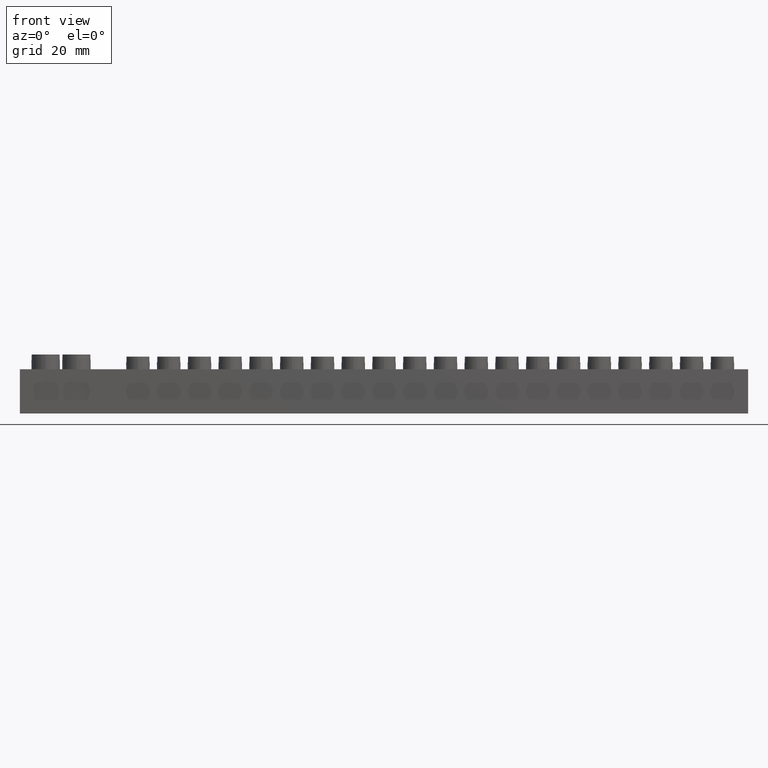
[diagram: clean part render]
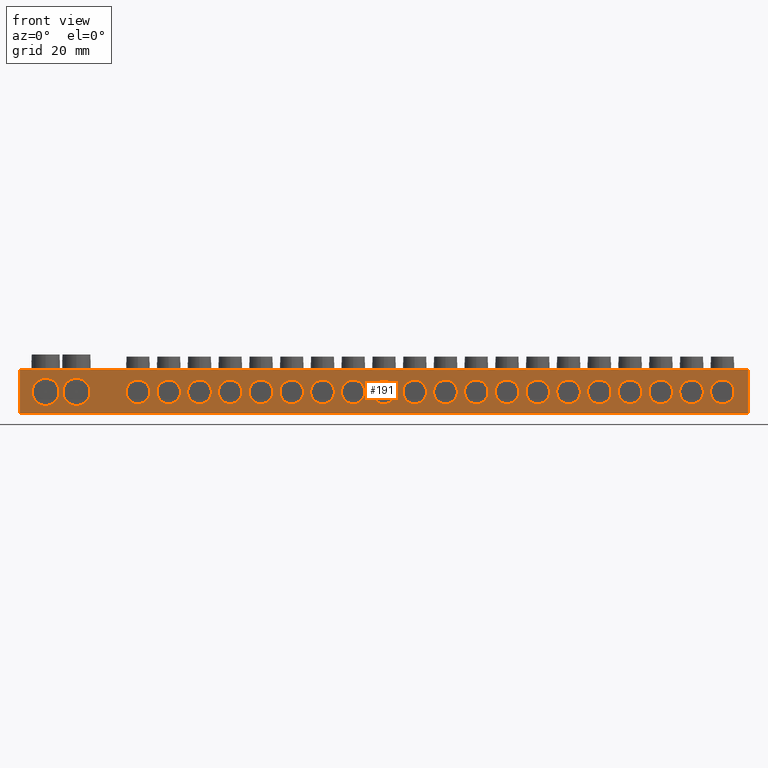
[diagram: same view with one face highlighted and labeled with its STEP entity id]
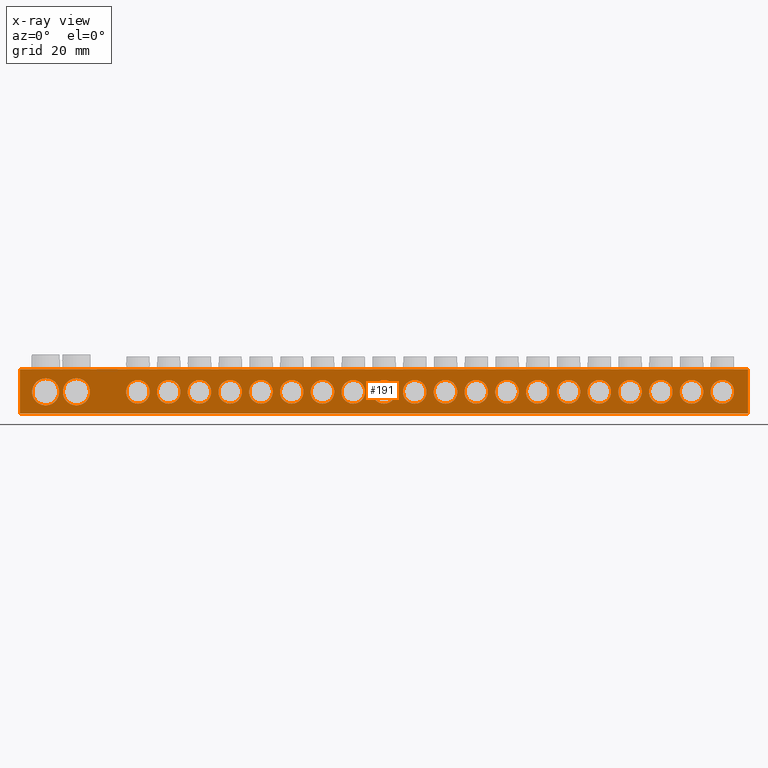
[diagram: x-ray of the same camera — body ghosted, the highlighted face saturated]
A machine part, front view. The second image highlights one B-rep face of the part: STEP entity #191.
The next image is the same camera in x-ray: the body ghosted, the highlighted face saturated — about 0% of this face is hidden behind the body in this view.
In plain terms, the highlighted planar face has unit normal (0, 1, 0).
Its self-contained STEP definition (entity closure, byte-faithful):
#80 = EDGE_CURVE ( 'NONE', #8462, #8503, #7525, .T. ) ;
#85 = EDGE_CURVE ( 'NONE', #12274, #12290, #11402, .T. ) ;
#92 = EDGE_CURVE ( 'NONE', #12310, #12314, #11470, .T. ) ;
#94 = EDGE_CURVE ( 'NONE', #8414, #8417, #7569, .T. ) ;
#96 = EDGE_CURVE ( 'NONE', #8403, #8395, #7550, .T. ) ;
#105 = EDGE_CURVE ( 'NONE', #8399, #8437, #7582, .T. ) ;
#112 = EDGE_CURVE ( 'NONE', #8449, #8440, #7586, .T. ) ;
#120 = EDGE_CURVE ( 'NONE', #12314, #12274, #11468, .T. ) ;
#123 = EDGE_CURVE ( 'NONE', #8466, #8392, #7571, .T. ) ;
#126 = EDGE_CURVE ( 'NONE', #8450, #8390, #7572, .T. ) ;
#130 = EDGE_CURVE ( 'NONE', #8429, #8487, #7554, .T. ) ;
#131 = EDGE_CURVE ( 'NONE', #8393, #8388, #7578, .T. ) ;
#132 = EDGE_CURVE ( 'NONE', #8432, #8401, #7579, .T. ) ;
#136 = EDGE_CURVE ( 'NONE', #8448, #8435, #7542, .T. ) ;
#137 = EDGE_CURVE ( 'NONE', #12290, #12310, #11507, .T. ) ;
#142 = EDGE_CURVE ( 'NONE', #8444, #8391, #7543, .T. ) ;
#191 = ADVANCED_FACE ( 'NONE', ( #11804, #11794, #11792, #11799, #11816, #11803, #11805, #11814, #11810, #11811, #11821, #11818, #11812, #11815, #11817, #11813, #11819, #11820, #11793, #11823, #11824, #11806, #11822 ), #11795, .F. ) ;
#306 = DIRECTION ( 'NONE',  ( 0.0000000000000000000, 0.0000000000000000000, -1.000000000000000000 ) ) ;
#309 = CARTESIAN_POINT ( 'NONE',  ( 36.55000000000012500, 0.0000000000000000000, 4.399999999999753400 ) ) ;
#312 = CARTESIAN_POINT ( 'NONE',  ( 111.5500000000000300, 0.0000000000000000000, 4.399999999999926600 ) ) ;
#314 = CARTESIAN_POINT ( 'NONE',  ( 42.80000000000011800, 0.0000000000000000000, 4.399999999999766800 ) ) ;
#315 = DIRECTION ( 'NONE',  ( -0.0000000000000000000, -1.000000000000000000, -0.0000000000000000000 ) ) ;
#317 = DIRECTION ( 'NONE',  ( 0.0000000000000000000, 0.0000000000000000000, -1.000000000000000000 ) ) ;
#320 = DIRECTION ( 'NONE',  ( 0.0000000000000000000, 0.0000000000000000000, -1.000000000000000000 ) ) ;
#323 = DIRECTION ( 'NONE',  ( -0.0000000000000000000, -1.000000000000000000, -0.0000000000000000000 ) ) ;
#326 = DIRECTION ( 'NONE',  ( 0.0000000000000000000, 0.0000000000000000000, -1.000000000000000000 ) ) ;
#333 = DIRECTION ( 'NONE',  ( -0.0000000000000000000, -1.000000000000000000, -0.0000000000000000000 ) ) ;
#342 = CARTESIAN_POINT ( 'NONE',  ( 11.55000000000000100, 0.0000000000000000000, 4.399999999999999500 ) ) ;
#345 = DIRECTION ( 'NONE',  ( 0.0000000000000000000, 0.0000000000000000000, -1.000000000000000000 ) ) ;
#349 = CARTESIAN_POINT ( 'NONE',  ( 99.05000000000004000, 0.0000000000000000000, 4.399999999999898200 ) ) ;
#350 = CARTESIAN_POINT ( 'NONE',  ( 117.8000000000000100, 0.0000000000000000000, 4.399999999999940800 ) ) ;
#352 = DIRECTION ( 'NONE',  ( 0.0000000000000000000, 0.0000000000000000000, -1.000000000000000000 ) ) ;
#355 = DIRECTION ( 'NONE',  ( -0.0000000000000000000, -1.000000000000000000, -0.0000000000000000000 ) ) ;
#358 = DIRECTION ( 'NONE',  ( 0.0000000000000000000, 0.0000000000000000000, -1.000000000000000000 ) ) ;
#364 = CARTESIAN_POINT ( 'NONE',  ( 49.05000000000011100, 0.0000000000000000000, 4.399999999999781900 ) ) ;
#365 = DIRECTION ( 'NONE',  ( -0.0000000000000000000, -1.000000000000000000, -0.0000000000000000000 ) ) ;
#366 = DIRECTION ( 'NONE',  ( -0.0000000000000000000, -1.000000000000000000, -0.0000000000000000000 ) ) ;
#371 = DIRECTION ( 'NONE',  ( -0.0000000000000000000, -1.000000000000000000, -0.0000000000000000000 ) ) ;
#375 = DIRECTION ( 'NONE',  ( 0.0000000000000000000, 0.0000000000000000000, -1.000000000000000000 ) ) ;
#428 = DIRECTION ( 'NONE',  ( -0.0000000000000000000, -1.000000000000000000, -0.0000000000000000000 ) ) ;
#430 = DIRECTION ( 'NONE',  ( 0.0000000000000000000, 0.0000000000000000000, -1.000000000000000000 ) ) ;
#448 = CARTESIAN_POINT ( 'NONE',  ( 124.0500000000000100, 0.0000000000000000000, 4.399999999999955900 ) ) ;
#466 = DIRECTION ( 'NONE',  ( -0.0000000000000000000, -1.000000000000000000, -0.0000000000000000000 ) ) ;
#467 = CARTESIAN_POINT ( 'NONE',  ( 55.30000000000009700, 0.0000000000000000000, 4.399999999999795200 ) ) ;
#468 = DIRECTION ( 'NONE',  ( -0.0000000000000000000, -1.000000000000000000, -0.0000000000000000000 ) ) ;
#470 = DIRECTION ( 'NONE',  ( 0.0000000000000000000, 0.0000000000000000000, -1.000000000000000000 ) ) ;
#476 = CARTESIAN_POINT ( 'NONE',  ( 30.30000000000013200, 0.0000000000000000000, 4.399999999999737500 ) ) ;
#478 = DIRECTION ( 'NONE',  ( 0.0000000000000000000, 0.0000000000000000000, -1.000000000000000000 ) ) ;
#482 = DIRECTION ( 'NONE',  ( -0.0000000000000000000, -1.000000000000000000, -0.0000000000000000000 ) ) ;
#489 = CARTESIAN_POINT ( 'NONE',  ( 24.05000000000013900, 0.0000000000000000000, 4.399999999999723200 ) ) ;
#499 = DIRECTION ( 'NONE',  ( 0.0000000000000000000, 0.0000000000000000000, -1.000000000000000000 ) ) ;
#510 = CARTESIAN_POINT ( 'NONE',  ( 86.55000000000005400, 0.0000000000000000000, 4.399999999999868000 ) ) ;
#542 = DIRECTION ( 'NONE',  ( -0.0000000000000000000, -1.000000000000000000, -0.0000000000000000000 ) ) ;
#544 = DIRECTION ( 'NONE',  ( 0.0000000000000000000, 0.0000000000000000000, -1.000000000000000000 ) ) ;
#553 = DIRECTION ( 'NONE',  ( 0.0000000000000000000, 0.0000000000000000000, -1.000000000000000000 ) ) ;
#569 = CARTESIAN_POINT ( 'NONE',  ( 61.55000000000009000, 0.0000000000000000000, 4.399999999999810300 ) ) ;
#576 = DIRECTION ( 'NONE',  ( -0.0000000000000000000, -1.000000000000000000, -0.0000000000000000000 ) ) ;
#939 = DIRECTION ( 'NONE',  ( -0.0000000000000000000, -1.000000000000000000, -0.0000000000000000000 ) ) ;
#941 = DIRECTION ( 'NONE',  ( -0.0000000000000000000, -1.000000000000000000, -0.0000000000000000000 ) ) ;
#942 = DIRECTION ( 'NONE',  ( 0.0000000000000000000, 0.0000000000000000000, -1.000000000000000000 ) ) ;
#967 = CARTESIAN_POINT ( 'NONE',  ( 55.30000000000009700, 0.0000000000000000000, 4.399999999999795200 ) ) ;
#977 = CARTESIAN_POINT ( 'NONE',  ( 42.80000000000011800, 0.0000000000000000000, 4.399999999999766800 ) ) ;
#978 = DIRECTION ( 'NONE',  ( 0.0000000000000000000, 0.0000000000000000000, -1.000000000000000000 ) ) ;
#993 = CARTESIAN_POINT ( 'NONE',  ( 30.30000000000013200, 0.0000000000000000000, 4.399999999999737500 ) ) ;
#1002 = CARTESIAN_POINT ( 'NONE',  ( 80.30000000000006800, 0.0000000000000000000, 4.399999999999853800 ) ) ;
#1016 = DIRECTION ( 'NONE',  ( -0.0000000000000000000, -1.000000000000000000, -0.0000000000000000000 ) ) ;
#1017 = DIRECTION ( 'NONE',  ( 0.0000000000000000000, 0.0000000000000000000, -1.000000000000000000 ) ) ;
#1018 = CARTESIAN_POINT ( 'NONE',  ( 61.55000000000009000, 0.0000000000000000000, 4.399999999999810300 ) ) ;
#1023 = DIRECTION ( 'NONE',  ( 0.0000000000000000000, 0.0000000000000000000, -1.000000000000000000 ) ) ;
#1026 = DIRECTION ( 'NONE',  ( -0.0000000000000000000, -1.000000000000000000, -0.0000000000000000000 ) ) ;
#1028 = DIRECTION ( 'NONE',  ( 0.0000000000000000000, 0.0000000000000000000, -1.000000000000000000 ) ) ;
#1036 = CARTESIAN_POINT ( 'NONE',  ( 74.05000000000006800, 0.0000000000000000000, 4.399999999999839600 ) ) ;
#1039 = CARTESIAN_POINT ( 'NONE',  ( 67.80000000000008200, 0.0000000000000000000, 4.399999999999825400 ) ) ;
#1040 = DIRECTION ( 'NONE',  ( -0.0000000000000000000, -1.000000000000000000, -0.0000000000000000000 ) ) ;
#1042 = DIRECTION ( 'NONE',  ( -0.0000000000000000000, -1.000000000000000000, -0.0000000000000000000 ) ) ;
#1045 = DIRECTION ( 'NONE',  ( 0.0000000000000000000, 0.0000000000000000000, -1.000000000000000000 ) ) ;
#1053 = DIRECTION ( 'NONE',  ( -0.0000000000000000000, -1.000000000000000000, -0.0000000000000000000 ) ) ;
#1056 = DIRECTION ( 'NONE',  ( -0.0000000000000000000, -1.000000000000000000, -0.0000000000000000000 ) ) ;
#1058 = CARTESIAN_POINT ( 'NONE',  ( 24.05000000000013900, 0.0000000000000000000, 4.399999999999723200 ) ) ;
#1063 = DIRECTION ( 'NONE',  ( 0.0000000000000000000, 0.0000000000000000000, -1.000000000000000000 ) ) ;
#1066 = CARTESIAN_POINT ( 'NONE',  ( 49.05000000000011100, 0.0000000000000000000, 4.399999999999781900 ) ) ;
#1070 = DIRECTION ( 'NONE',  ( 0.0000000000000000000, 0.0000000000000000000, -1.000000000000000000 ) ) ;
#1073 = DIRECTION ( 'NONE',  ( 0.0000000000000000000, 0.0000000000000000000, -1.000000000000000000 ) ) ;
#1085 = CARTESIAN_POINT ( 'NONE',  ( 36.55000000000012500, 0.0000000000000000000, 4.399999999999753400 ) ) ;
#1093 = DIRECTION ( 'NONE',  ( -0.0000000000000000000, -1.000000000000000000, -0.0000000000000000000 ) ) ;
#1116 = DIRECTION ( 'NONE',  ( 0.0000000000000000000, 0.0000000000000000000, -1.000000000000000000 ) ) ;
#1119 = CARTESIAN_POINT ( 'NONE',  ( 105.3000000000000300, 0.0000000000000000000, 4.399999999999911500 ) ) ;
#1120 = CARTESIAN_POINT ( 'NONE',  ( 67.80000000000008200, 0.0000000000000000000, 4.399999999999825400 ) ) ;
#1121 = DIRECTION ( 'NONE',  ( -0.0000000000000000000, -1.000000000000000000, -0.0000000000000000000 ) ) ;
#1122 = DIRECTION ( 'NONE',  ( 0.0000000000000000000, 0.0000000000000000000, -1.000000000000000000 ) ) ;
#1123 = DIRECTION ( 'NONE',  ( 0.0000000000000000000, 0.0000000000000000000, -1.000000000000000000 ) ) ;
#1129 = DIRECTION ( 'NONE',  ( -0.0000000000000000000, -1.000000000000000000, -0.0000000000000000000 ) ) ;
#1131 = CARTESIAN_POINT ( 'NONE',  ( 80.30000000000006800, 0.0000000000000000000, 4.399999999999853800 ) ) ;
#1133 = DIRECTION ( 'NONE',  ( -0.0000000000000000000, -1.000000000000000000, -0.0000000000000000000 ) ) ;
#1139 = CARTESIAN_POINT ( 'NONE',  ( 142.7999999999999800, 0.0000000000000000000, 4.399999999999999500 ) ) ;
#1141 = CARTESIAN_POINT ( 'NONE',  ( 136.5500000000000100, 0.0000000000000000000, 4.399999999999984400 ) ) ;
#1142 = DIRECTION ( 'NONE',  ( -0.0000000000000000000, -1.000000000000000000, -0.0000000000000000000 ) ) ;
#1143 = DIRECTION ( 'NONE',  ( -0.0000000000000000000, -1.000000000000000000, -0.0000000000000000000 ) ) ;
#1144 = DIRECTION ( 'NONE',  ( 0.0000000000000000000, 0.0000000000000000000, -1.000000000000000000 ) ) ;
#1146 = DIRECTION ( 'NONE',  ( 0.0000000000000000000, 0.0000000000000000000, -1.000000000000000000 ) ) ;
#1162 = DIRECTION ( 'NONE',  ( 0.0000000000000000000, 0.0000000000000000000, -1.000000000000000000 ) ) ;
#1166 = CARTESIAN_POINT ( 'NONE',  ( 74.05000000000006800, 0.0000000000000000000, 4.399999999999839600 ) ) ;
#1167 = DIRECTION ( 'NONE',  ( -0.0000000000000000000, -1.000000000000000000, -0.0000000000000000000 ) ) ;
#1171 = DIRECTION ( 'NONE',  ( -0.0000000000000000000, -1.000000000000000000, -0.0000000000000000000 ) ) ;
#1579 = CARTESIAN_POINT ( 'NONE',  ( 148.0500000000000100, 0.0000000000000000000, 0.0000000000000000000 ) ) ;
#1637 = CARTESIAN_POINT ( 'NONE',  ( 148.0500000000000100, 0.0000000000000000000, 9.000000000000001800 ) ) ;
#1648 = CARTESIAN_POINT ( 'NONE',  ( 0.05000000000000000300, 0.0000000000000000000, 9.000000000000001800 ) ) ;
#1651 = CARTESIAN_POINT ( 'NONE',  ( 0.05000000000000000300, 0.0000000000000000000, 0.0000000000000000000 ) ) ;
#2678 = EDGE_LOOP ( 'NONE', ( #7935, #7885 ) ) ;
#2679 = EDGE_LOOP ( 'NONE', ( #7827, #7848 ) ) ;
#2681 = EDGE_LOOP ( 'NONE', ( #7852, #7832 ) ) ;
#2682 = EDGE_LOOP ( 'NONE', ( #7891, #7939 ) ) ;
#2683 = EDGE_LOOP ( 'NONE', ( #7927, #7932 ) ) ;
#2686 = EDGE_LOOP ( 'NONE', ( #7938, #7835 ) ) ;
#2691 = EDGE_LOOP ( 'NONE', ( #7940, #7892 ) ) ;
#2694 = EDGE_LOOP ( 'NONE', ( #7921, #7900 ) ) ;
#2698 = EDGE_LOOP ( 'NONE', ( #7903, #7880 ) ) ;
#2702 = EDGE_LOOP ( 'NONE', ( #7905, #7920 ) ) ;
#2704 = EDGE_LOOP ( 'NONE', ( #7889, #7934 ) ) ;
#2708 = EDGE_LOOP ( 'NONE', ( #7830, #7841 ) ) ;
#2709 = EDGE_LOOP ( 'NONE', ( #7857, #7926 ) ) ;
#2715 = EDGE_LOOP ( 'NONE', ( #7845, #7923 ) ) ;
#2726 = EDGE_LOOP ( 'NONE', ( #7824, #7842 ) ) ;
#2729 = EDGE_LOOP ( 'NONE', ( #7936, #7844, #7843, #7899 ) ) ;
#2732 = EDGE_LOOP ( 'NONE', ( #7879, #7893 ) ) ;
#2739 = EDGE_LOOP ( 'NONE', ( #7911, #7930 ) ) ;
#2752 = EDGE_LOOP ( 'NONE', ( #7897, #7928 ) ) ;
#2773 = EDGE_LOOP ( 'NONE', ( #7853, #7834 ) ) ;
#2789 = EDGE_LOOP ( 'NONE', ( #7847, #7878 ) ) ;
#2793 = EDGE_LOOP ( 'NONE', ( #7941, #7917 ) ) ;
#2794 = EDGE_LOOP ( 'NONE', ( #7933, #7898 ) ) ;
#2987 = DIRECTION ( 'NONE',  ( -0.0000000000000000000, -1.000000000000000000, -0.0000000000000000000 ) ) ;
#2988 = CARTESIAN_POINT ( 'NONE',  ( 130.3000000000000400, 0.0000000000000000000, 4.399999999999970200 ) ) ;
#2994 = DIRECTION ( 'NONE',  ( -0.0000000000000000000, -1.000000000000000000, -0.0000000000000000000 ) ) ;
#2996 = CARTESIAN_POINT ( 'NONE',  ( 5.299999999999999800, 0.0000000000000000000, 4.399999999999999500 ) ) ;
#2997 = DIRECTION ( 'NONE',  ( 0.0000000000000000000, 0.0000000000000000000, -1.000000000000000000 ) ) ;
#5025 = DIRECTION ( 'NONE',  ( 0.0000000000000000000, 0.0000000000000000000, -1.000000000000000000 ) ) ;
#5107 = AXIS2_PLACEMENT_3D ( 'NONE', #1036, #1040, #1045 ) ;
#5109 = CIRCLE ( 'NONE', #5111, 2.400000000000000800 ) ;
#5111 = AXIS2_PLACEMENT_3D ( 'NONE', #1085, #1093, #1073 ) ;
#5114 = CIRCLE ( 'NONE', #5107, 2.400000000000000800 ) ;
#5122 = CIRCLE ( 'NONE', #5148, 2.400000000000000800 ) ;
#5125 = AXIS2_PLACEMENT_3D ( 'NONE', #1058, #1056, #1063 ) ;
#5127 = CIRCLE ( 'NONE', #5156, 2.400000000000000800 ) ;
#5148 = AXIS2_PLACEMENT_3D ( 'NONE', #1039, #1053, #1028 ) ;
#5152 = CIRCLE ( 'NONE', #5125, 2.400000000000001200 ) ;
#5156 = AXIS2_PLACEMENT_3D ( 'NONE', #1066, #1042, #1070 ) ;
#5193 = AXIS2_PLACEMENT_3D ( 'NONE', #1002, #2987, #11854 ) ;
#5198 = CIRCLE ( 'NONE', #5193, 2.400000000000000800 ) ;
#5567 = CIRCLE ( 'NONE', #5569, 2.400000000000000800 ) ;
#5568 = AXIS2_PLACEMENT_3D ( 'NONE', #993, #1016, #1017 ) ;
#5569 = AXIS2_PLACEMENT_3D ( 'NONE', #1018, #1026, #1023 ) ;
#6037 = CIRCLE ( 'NONE', #6091, 2.400000000000000800 ) ;
#6091 = AXIS2_PLACEMENT_3D ( 'NONE', #967, #939, #978 ) ;
#6111 = AXIS2_PLACEMENT_3D ( 'NONE', #2996, #2994, #2997 ) ;
#6139 = CIRCLE ( 'NONE', #6111, 2.749999999999997300 ) ;
#6166 = AXIS2_PLACEMENT_3D ( 'NONE', #309, #315, #326 ) ;
#6167 = AXIS2_PLACEMENT_3D ( 'NONE', #2988, #1143, #1144 ) ;
#6169 = CIRCLE ( 'NONE', #6204, 2.400000000000000800 ) ;
#6170 = AXIS2_PLACEMENT_3D ( 'NONE', #1166, #1167, #306 ) ;
#6171 = CIRCLE ( 'NONE', #6200, 2.400000000000002600 ) ;
#6175 = CIRCLE ( 'NONE', #6214, 2.400000000000000800 ) ;
#6180 = CIRCLE ( 'NONE', #6170, 2.400000000000000800 ) ;
#6186 = CIRCLE ( 'NONE', #6223, 2.400000000000000800 ) ;
#6189 = CIRCLE ( 'NONE', #6167, 2.400000000000002600 ) ;
#6191 = AXIS2_PLACEMENT_3D ( 'NONE', #1141, #1129, #1116 ) ;
#6192 = AXIS2_PLACEMENT_3D ( 'NONE', #1120, #1133, #1123 ) ;
#6195 = CIRCLE ( 'NONE', #6191, 2.400000000000002600 ) ;
#6197 = CIRCLE ( 'NONE', #6192, 2.400000000000000800 ) ;
#6200 = AXIS2_PLACEMENT_3D ( 'NONE', #1139, #1171, #1162 ) ;
#6201 = CIRCLE ( 'NONE', #6206, 2.400000000000000800 ) ;
#6204 = AXIS2_PLACEMENT_3D ( 'NONE', #1119, #1142, #1146 ) ;
#6206 = AXIS2_PLACEMENT_3D ( 'NONE', #314, #323, #320 ) ;
#6209 = CIRCLE ( 'NONE', #6166, 2.400000000000000800 ) ;
#6214 = AXIS2_PLACEMENT_3D ( 'NONE', #1131, #1121, #1122 ) ;
#6223 = AXIS2_PLACEMENT_3D ( 'NONE', #7669, #7000, #5025 ) ;
#6224 = CIRCLE ( 'NONE', #6232, 2.400000000000000800 ) ;
#6225 = CIRCLE ( 'NONE', #6264, 2.400000000000000800 ) ;
#6226 = CIRCLE ( 'NONE', #6254, 2.749999999999998200 ) ;
#6228 = AXIS2_PLACEMENT_3D ( 'NONE', #349, #355, #358 ) ;
#6232 = AXIS2_PLACEMENT_3D ( 'NONE', #364, #366, #375 ) ;
#6254 = AXIS2_PLACEMENT_3D ( 'NONE', #342, #365, #352 ) ;
#6257 = AXIS2_PLACEMENT_3D ( 'NONE', #350, #371, #345 ) ;
#6264 = AXIS2_PLACEMENT_3D ( 'NONE', #312, #333, #317 ) ;
#6269 = CIRCLE ( 'NONE', #6257, 2.400000000000000800 ) ;
#6277 = CIRCLE ( 'NONE', #6228, 2.400000000000000800 ) ;
#6285 = CIRCLE ( 'NONE', #6289, 2.399999999999987500 ) ;
#6289 = AXIS2_PLACEMENT_3D ( 'NONE', #448, #428, #430 ) ;
#6304 = CIRCLE ( 'NONE', #5568, 2.400000000000000800 ) ;
#6308 = AXIS2_PLACEMENT_3D ( 'NONE', #476, #466, #470 ) ;
#6309 = CIRCLE ( 'NONE', #6328, 2.400000000000000800 ) ;
#6310 = AXIS2_PLACEMENT_3D ( 'NONE', #510, #542, #544 ) ;
#6316 = CIRCLE ( 'NONE', #6310, 2.400000000000000800 ) ;
#6318 = CIRCLE ( 'NONE', #6384, 2.400000000000000800 ) ;
#6324 = CIRCLE ( 'NONE', #6308, 2.400000000000000800 ) ;
#6326 = AXIS2_PLACEMENT_3D ( 'NONE', #489, #468, #478 ) ;
#6328 = AXIS2_PLACEMENT_3D ( 'NONE', #467, #482, #499 ) ;
#6333 = CIRCLE ( 'NONE', #6326, 2.400000000000001200 ) ;
#6366 = CIRCLE ( 'NONE', #6534, 2.400000000000000800 ) ;
#6384 = AXIS2_PLACEMENT_3D ( 'NONE', #569, #576, #553 ) ;
#6534 = AXIS2_PLACEMENT_3D ( 'NONE', #977, #941, #942 ) ;
#7000 = DIRECTION ( 'NONE',  ( -0.0000000000000000000, -1.000000000000000000, -0.0000000000000000000 ) ) ;
#7180 = AXIS2_PLACEMENT_3D ( 'NONE', #11800, #11796, #11797 ) ;
#7523 = VECTOR ( 'NONE', #11447, 1000.000000000000000 ) ;
#7524 = AXIS2_PLACEMENT_3D ( 'NONE', #11439, #11446, #11463 ) ;
#7525 = CIRCLE ( 'NONE', #7524, 2.400000000000000800 ) ;
#7530 = AXIS2_PLACEMENT_3D ( 'NONE', #11548, #11537, #11577 ) ;
#7535 = AXIS2_PLACEMENT_3D ( 'NONE', #11499, #11494, #11524 ) ;
#7542 = CIRCLE ( 'NONE', #7584, 2.400000000000002600 ) ;
#7543 = CIRCLE ( 'NONE', #7530, 2.749999999999998200 ) ;
#7550 = CIRCLE ( 'NONE', #7552, 2.400000000000000800 ) ;
#7552 = AXIS2_PLACEMENT_3D ( 'NONE', #11438, #11451, #11442 ) ;
#7553 = AXIS2_PLACEMENT_3D ( 'NONE', #11478, #11454, #11473 ) ;
#7554 = CIRCLE ( 'NONE', #7535, 2.400000000000000800 ) ;
#7560 = AXIS2_PLACEMENT_3D ( 'NONE', #11436, #11471, #11437 ) ;
#7563 = AXIS2_PLACEMENT_3D ( 'NONE', #11519, #11500, #11518 ) ;
#7565 = VECTOR ( 'NONE', #11511, 1000.000000000000000 ) ;
#7566 = VECTOR ( 'NONE', #11450, 1000.000000000000000 ) ;
#7569 = CIRCLE ( 'NONE', #7560, 2.400000000000000800 ) ;
#7571 = CIRCLE ( 'NONE', #7590, 2.400000000000000800 ) ;
#7572 = CIRCLE ( 'NONE', #7577, 2.749999999999997300 ) ;
#7576 = AXIS2_PLACEMENT_3D ( 'NONE', #11474, #11475, #11453 ) ;
#7577 = AXIS2_PLACEMENT_3D ( 'NONE', #11441, #11465, #11466 ) ;
#7578 = CIRCLE ( 'NONE', #7563, 2.400000000000000800 ) ;
#7579 = CIRCLE ( 'NONE', #7583, 2.400000000000002600 ) ;
#7581 = VECTOR ( 'NONE', #11459, 1000.000000000000000 ) ;
#7582 = CIRCLE ( 'NONE', #7576, 2.400000000000002600 ) ;
#7583 = AXIS2_PLACEMENT_3D ( 'NONE', #11484, #11508, #11480 ) ;
#7584 = AXIS2_PLACEMENT_3D ( 'NONE', #11488, #11520, #11509 ) ;
#7586 = CIRCLE ( 'NONE', #7553, 2.399999999999987500 ) ;
#7590 = AXIS2_PLACEMENT_3D ( 'NONE', #11460, #11462, #11444 ) ;
#7669 = CARTESIAN_POINT ( 'NONE',  ( 92.80000000000005400, 0.0000000000000000000, 4.399999999999883100 ) ) ;
#7824 = ORIENTED_EDGE ( 'NONE', *, *, #123, .F. ) ;
#7827 = ORIENTED_EDGE ( 'NONE', *, *, #80, .F. ) ;
#7830 = ORIENTED_EDGE ( 'NONE', *, *, #94, .F. ) ;
#7832 = ORIENTED_EDGE ( 'NONE', *, *, #10122, .F. ) ;
#7834 = ORIENTED_EDGE ( 'NONE', *, *, #10046, .F. ) ;
#7835 = ORIENTED_EDGE ( 'NONE', *, *, #10061, .F. ) ;
#7841 = ORIENTED_EDGE ( 'NONE', *, *, #10027, .F. ) ;
#7842 = ORIENTED_EDGE ( 'NONE', *, *, #10036, .F. ) ;
#7843 = ORIENTED_EDGE ( 'NONE', *, *, #137, .F. ) ;
#7844 = ORIENTED_EDGE ( 'NONE', *, *, #92, .F. ) ;
#7845 = ORIENTED_EDGE ( 'NONE', *, *, #105, .F. ) ;
#7847 = ORIENTED_EDGE ( 'NONE', *, *, #10321, .F. ) ;
#7848 = ORIENTED_EDGE ( 'NONE', *, *, #10072, .F. ) ;
#7852 = ORIENTED_EDGE ( 'NONE', *, *, #130, .F. ) ;
#7853 = ORIENTED_EDGE ( 'NONE', *, *, #10303, .F. ) ;
#7857 = ORIENTED_EDGE ( 'NONE', *, *, #96, .F. ) ;
#7878 = ORIENTED_EDGE ( 'NONE', *, *, #10038, .F. ) ;
#7879 = ORIENTED_EDGE ( 'NONE', *, *, #10291, .F. ) ;
#7880 = ORIENTED_EDGE ( 'NONE', *, *, #10035, .F. ) ;
#7885 = ORIENTED_EDGE ( 'NONE', *, *, #10104, .F. ) ;
#7889 = ORIENTED_EDGE ( 'NONE', *, *, #131, .F. ) ;
#7891 = ORIENTED_EDGE ( 'NONE', *, *, #10296, .F. ) ;
#7892 = ORIENTED_EDGE ( 'NONE', *, *, #10053, .F. ) ;
#7893 = ORIENTED_EDGE ( 'NONE', *, *, #10039, .F. ) ;
#7897 = ORIENTED_EDGE ( 'NONE', *, *, #10277, .F. ) ;
#7898 = ORIENTED_EDGE ( 'NONE', *, *, #10009, .F. ) ;
#7899 = ORIENTED_EDGE ( 'NONE', *, *, #85, .F. ) ;
#7900 = ORIENTED_EDGE ( 'NONE', *, *, #10028, .F. ) ;
#7903 = ORIENTED_EDGE ( 'NONE', *, *, #132, .F. ) ;
#7905 = ORIENTED_EDGE ( 'NONE', *, *, #10295, .F. ) ;
#7911 = ORIENTED_EDGE ( 'NONE', *, *, #10274, .F. ) ;
#7917 = ORIENTED_EDGE ( 'NONE', *, *, #10099, .F. ) ;
#7920 = ORIENTED_EDGE ( 'NONE', *, *, #10103, .F. ) ;
#7921 = ORIENTED_EDGE ( 'NONE', *, *, #136, .F. ) ;
#7923 = ORIENTED_EDGE ( 'NONE', *, *, #10041, .F. ) ;
#7926 = ORIENTED_EDGE ( 'NONE', *, *, #10062, .F. ) ;
#7927 = ORIENTED_EDGE ( 'NONE', *, *, #10272, .F. ) ;
#7928 = ORIENTED_EDGE ( 'NONE', *, *, #10134, .F. ) ;
#7930 = ORIENTED_EDGE ( 'NONE', *, *, #10049, .F. ) ;
#7932 = ORIENTED_EDGE ( 'NONE', *, *, #10107, .F. ) ;
#7933 = ORIENTED_EDGE ( 'NONE', *, *, #126, .F. ) ;
#7934 = ORIENTED_EDGE ( 'NONE', *, *, #10056, .F. ) ;
#7935 = ORIENTED_EDGE ( 'NONE', *, *, #10275, .F. ) ;
#7936 = ORIENTED_EDGE ( 'NONE', *, *, #120, .F. ) ;
#7938 = ORIENTED_EDGE ( 'NONE', *, *, #142, .F. ) ;
#7939 = ORIENTED_EDGE ( 'NONE', *, *, #10070, .F. ) ;
#7940 = ORIENTED_EDGE ( 'NONE', *, *, #10311, .F. ) ;
#7941 = ORIENTED_EDGE ( 'NONE', *, *, #112, .F. ) ;
#8388 = VERTEX_POINT ( 'NONE', #10643 ) ;
#8390 = VERTEX_POINT ( 'NONE', #10591 ) ;
#8391 = VERTEX_POINT ( 'NONE', #10638 ) ;
#8392 = VERTEX_POINT ( 'NONE', #10617 ) ;
#8393 = VERTEX_POINT ( 'NONE', #10615 ) ;
#8395 = VERTEX_POINT ( 'NONE', #10563 ) ;
#8399 = VERTEX_POINT ( 'NONE', #10594 ) ;
#8401 = VERTEX_POINT ( 'NONE', #10589 ) ;
#8403 = VERTEX_POINT ( 'NONE', #10598 ) ;
#8408 = VERTEX_POINT ( 'NONE', #10634 ) ;
#8410 = VERTEX_POINT ( 'NONE', #10616 ) ;
#8414 = VERTEX_POINT ( 'NONE', #10592 ) ;
#8417 = VERTEX_POINT ( 'NONE', #10618 ) ;
#8418 = VERTEX_POINT ( 'NONE', #10626 ) ;
#8419 = VERTEX_POINT ( 'NONE', #10599 ) ;
#8421 = VERTEX_POINT ( 'NONE', #10628 ) ;
#8429 = VERTEX_POINT ( 'NONE', #10605 ) ;
#8432 = VERTEX_POINT ( 'NONE', #10609 ) ;
#8435 = VERTEX_POINT ( 'NONE', #10611 ) ;
#8437 = VERTEX_POINT ( 'NONE', #10621 ) ;
#8440 = VERTEX_POINT ( 'NONE', #10652 ) ;
#8444 = VERTEX_POINT ( 'NONE', #10653 ) ;
#8448 = VERTEX_POINT ( 'NONE', #10690 ) ;
#8449 = VERTEX_POINT ( 'NONE', #10685 ) ;
#8450 = VERTEX_POINT ( 'NONE', #10672 ) ;
#8452 = VERTEX_POINT ( 'NONE', #10658 ) ;
#8456 = VERTEX_POINT ( 'NONE', #10670 ) ;
#8458 = VERTEX_POINT ( 'NONE', #10679 ) ;
#8462 = VERTEX_POINT ( 'NONE', #10669 ) ;
#8463 = VERTEX_POINT ( 'NONE', #10671 ) ;
#8464 = VERTEX_POINT ( 'NONE', #10650 ) ;
#8465 = VERTEX_POINT ( 'NONE', #10704 ) ;
#8466 = VERTEX_POINT ( 'NONE', #10663 ) ;
#8472 = VERTEX_POINT ( 'NONE', #10692 ) ;
#8479 = VERTEX_POINT ( 'NONE', #10688 ) ;
#8482 = VERTEX_POINT ( 'NONE', #10649 ) ;
#8487 = VERTEX_POINT ( 'NONE', #10693 ) ;
#8499 = VERTEX_POINT ( 'NONE', #10700 ) ;
#8500 = VERTEX_POINT ( 'NONE', #10678 ) ;
#8502 = VERTEX_POINT ( 'NONE', #10701 ) ;
#8503 = VERTEX_POINT ( 'NONE', #10759 ) ;
#8507 = VERTEX_POINT ( 'NONE', #10757 ) ;
#8508 = VERTEX_POINT ( 'NONE', #10745 ) ;
#8512 = VERTEX_POINT ( 'NONE', #10729 ) ;
#10009 = EDGE_CURVE ( 'NONE', #8390, #8450, #6139, .T. ) ;
#10027 = EDGE_CURVE ( 'NONE', #8417, #8414, #6186, .T. ) ;
#10028 = EDGE_CURVE ( 'NONE', #8435, #8448, #6189, .T. ) ;
#10035 = EDGE_CURVE ( 'NONE', #8401, #8432, #6195, .T. ) ;
#10036 = EDGE_CURVE ( 'NONE', #8392, #8466, #6169, .T. ) ;
#10038 = EDGE_CURVE ( 'NONE', #8479, #8482, #6175, .T. ) ;
#10039 = EDGE_CURVE ( 'NONE', #8500, #8465, #6197, .T. ) ;
#10041 = EDGE_CURVE ( 'NONE', #8437, #8399, #6171, .T. ) ;
#10046 = EDGE_CURVE ( 'NONE', #8507, #8512, #6180, .T. ) ;
#10049 = EDGE_CURVE ( 'NONE', #8502, #8410, #6201, .T. ) ;
#10053 = EDGE_CURVE ( 'NONE', #8418, #8456, #6209, .T. ) ;
#10056 = EDGE_CURVE ( 'NONE', #8388, #8393, #6225, .T. ) ;
#10061 = EDGE_CURVE ( 'NONE', #8391, #8444, #6226, .T. ) ;
#10062 = EDGE_CURVE ( 'NONE', #8395, #8403, #6269, .T. ) ;
#10070 = EDGE_CURVE ( 'NONE', #8452, #8419, #6224, .T. ) ;
#10072 = EDGE_CURVE ( 'NONE', #8503, #8462, #6277, .T. ) ;
#10099 = EDGE_CURVE ( 'NONE', #8440, #8449, #6285, .T. ) ;
#10103 = EDGE_CURVE ( 'NONE', #8421, #8463, #6333, .T. ) ;
#10104 = EDGE_CURVE ( 'NONE', #8458, #8464, #6324, .T. ) ;
#10107 = EDGE_CURVE ( 'NONE', #8472, #8508, #6309, .T. ) ;
#10122 = EDGE_CURVE ( 'NONE', #8487, #8429, #6316, .T. ) ;
#10134 = EDGE_CURVE ( 'NONE', #8408, #8499, #6318, .T. ) ;
#10272 = EDGE_CURVE ( 'NONE', #8508, #8472, #6037, .T. ) ;
#10274 = EDGE_CURVE ( 'NONE', #8410, #8502, #6366, .T. ) ;
#10275 = EDGE_CURVE ( 'NONE', #8464, #8458, #6304, .T. ) ;
#10277 = EDGE_CURVE ( 'NONE', #8499, #8408, #5567, .T. ) ;
#10291 = EDGE_CURVE ( 'NONE', #8465, #8500, #5122, .T. ) ;
#10295 = EDGE_CURVE ( 'NONE', #8463, #8421, #5152, .T. ) ;
#10296 = EDGE_CURVE ( 'NONE', #8419, #8452, #5127, .T. ) ;
#10303 = EDGE_CURVE ( 'NONE', #8512, #8507, #5114, .T. ) ;
#10311 = EDGE_CURVE ( 'NONE', #8456, #8418, #5109, .T. ) ;
#10321 = EDGE_CURVE ( 'NONE', #8482, #8479, #5198, .T. ) ;
#10563 = CARTESIAN_POINT ( 'NONE',  ( 117.8000000000000100, 0.0000000000000000000, 6.799999999999941200 ) ) ;
#10589 = CARTESIAN_POINT ( 'NONE',  ( 136.5500000000000100, 0.0000000000000000000, 6.799999999999986500 ) ) ;
#10591 = CARTESIAN_POINT ( 'NONE',  ( 5.299999999999999800, 0.0000000000000000000, 7.149999999999996800 ) ) ;
#10592 = CARTESIAN_POINT ( 'NONE',  ( 92.80000000000005400, 0.0000000000000000000, 1.999999999999882500 ) ) ;
#10594 = CARTESIAN_POINT ( 'NONE',  ( 142.7999999999999800, 0.0000000000000000000, 1.999999999999997100 ) ) ;
#10598 = CARTESIAN_POINT ( 'NONE',  ( 117.8000000000000100, 0.0000000000000000000, 1.999999999999940700 ) ) ;
#10599 = CARTESIAN_POINT ( 'NONE',  ( 49.05000000000011100, 0.0000000000000000000, 1.999999999999781100 ) ) ;
#10605 = CARTESIAN_POINT ( 'NONE',  ( 86.55000000000005400, 0.0000000000000000000, 1.999999999999867700 ) ) ;
#10609 = CARTESIAN_POINT ( 'NONE',  ( 136.5500000000000100, 0.0000000000000000000, 1.999999999999982200 ) ) ;
#10611 = CARTESIAN_POINT ( 'NONE',  ( 130.3000000000000400, 0.0000000000000000000, 6.799999999999972300 ) ) ;
#10615 = CARTESIAN_POINT ( 'NONE',  ( 111.5500000000000300, 0.0000000000000000000, 1.999999999999925800 ) ) ;
#10616 = CARTESIAN_POINT ( 'NONE',  ( 42.80000000000011800, 0.0000000000000000000, 1.999999999999766200 ) ) ;
#10617 = CARTESIAN_POINT ( 'NONE',  ( 105.3000000000000300, 0.0000000000000000000, 6.799999999999911900 ) ) ;
#10618 = CARTESIAN_POINT ( 'NONE',  ( 92.80000000000005400, 0.0000000000000000000, 6.799999999999884400 ) ) ;
#10621 = CARTESIAN_POINT ( 'NONE',  ( 142.7999999999999800, 0.0000000000000000000, 6.800000000000002500 ) ) ;
#10626 = CARTESIAN_POINT ( 'NONE',  ( 36.55000000000012500, 0.0000000000000000000, 6.799999999999753800 ) ) ;
#10628 = CARTESIAN_POINT ( 'NONE',  ( 24.05000000000013900, 0.0000000000000000000, 6.799999999999724500 ) ) ;
#10634 = CARTESIAN_POINT ( 'NONE',  ( 61.55000000000009000, 0.0000000000000000000, 6.799999999999811500 ) ) ;
#10638 = CARTESIAN_POINT ( 'NONE',  ( 11.55000000000000100, 0.0000000000000000000, 7.149999999999997700 ) ) ;
#10643 = CARTESIAN_POINT ( 'NONE',  ( 111.5500000000000300, 0.0000000000000000000, 6.799999999999927900 ) ) ;
#10649 = CARTESIAN_POINT ( 'NONE',  ( 80.30000000000006800, 0.0000000000000000000, 1.999999999999853000 ) ) ;
#10650 = CARTESIAN_POINT ( 'NONE',  ( 30.30000000000013200, 0.0000000000000000000, 1.999999999999736900 ) ) ;
#10652 = CARTESIAN_POINT ( 'NONE',  ( 124.0500000000000100, 0.0000000000000000000, 6.799999999999943000 ) ) ;
#10653 = CARTESIAN_POINT ( 'NONE',  ( 11.55000000000000100, 0.0000000000000000000, 1.650000000000001200 ) ) ;
#10658 = CARTESIAN_POINT ( 'NONE',  ( 49.05000000000011100, 0.0000000000000000000, 6.799999999999782200 ) ) ;
#10663 = CARTESIAN_POINT ( 'NONE',  ( 105.3000000000000300, 0.0000000000000000000, 1.999999999999911200 ) ) ;
#10669 = CARTESIAN_POINT ( 'NONE',  ( 99.05000000000004000, 0.0000000000000000000, 1.999999999999897200 ) ) ;
#10670 = CARTESIAN_POINT ( 'NONE',  ( 36.55000000000012500, 0.0000000000000000000, 1.999999999999752400 ) ) ;
#10671 = CARTESIAN_POINT ( 'NONE',  ( 24.05000000000013900, 0.0000000000000000000, 1.999999999999722400 ) ) ;
#10672 = CARTESIAN_POINT ( 'NONE',  ( 5.299999999999999800, 0.0000000000000000000, 1.650000000000002100 ) ) ;
#10678 = CARTESIAN_POINT ( 'NONE',  ( 67.80000000000008200, 0.0000000000000000000, 6.799999999999824900 ) ) ;
#10679 = CARTESIAN_POINT ( 'NONE',  ( 30.30000000000013200, 0.0000000000000000000, 6.799999999999738700 ) ) ;
#10685 = CARTESIAN_POINT ( 'NONE',  ( 124.0500000000000100, 0.0000000000000000000, 1.999999999999968500 ) ) ;
#10688 = CARTESIAN_POINT ( 'NONE',  ( 80.30000000000006800, 0.0000000000000000000, 6.799999999999855000 ) ) ;
#10690 = CARTESIAN_POINT ( 'NONE',  ( 130.3000000000000400, 0.0000000000000000000, 1.999999999999967600 ) ) ;
#10692 = CARTESIAN_POINT ( 'NONE',  ( 55.30000000000009700, 0.0000000000000000000, 6.799999999999795500 ) ) ;
#10693 = CARTESIAN_POINT ( 'NONE',  ( 86.55000000000005400, 0.0000000000000000000, 6.799999999999868400 ) ) ;
#10700 = CARTESIAN_POINT ( 'NONE',  ( 61.55000000000009000, 0.0000000000000000000, 1.999999999999809700 ) ) ;
#10701 = CARTESIAN_POINT ( 'NONE',  ( 42.80000000000011800, 0.0000000000000000000, 6.799999999999768000 ) ) ;
#10704 = CARTESIAN_POINT ( 'NONE',  ( 67.80000000000008200, 0.0000000000000000000, 1.999999999999824400 ) ) ;
#10729 = CARTESIAN_POINT ( 'NONE',  ( 74.05000000000006800, 0.0000000000000000000, 1.999999999999839200 ) ) ;
#10745 = CARTESIAN_POINT ( 'NONE',  ( 55.30000000000009700, 0.0000000000000000000, 1.999999999999794800 ) ) ;
#10757 = CARTESIAN_POINT ( 'NONE',  ( 74.05000000000006800, 0.0000000000000000000, 6.799999999999840800 ) ) ;
#10759 = CARTESIAN_POINT ( 'NONE',  ( 99.05000000000004000, 0.0000000000000000000, 6.799999999999898600 ) ) ;
#11402 = LINE ( 'NONE', #11417, #7523 ) ;
#11417 = CARTESIAN_POINT ( 'NONE',  ( 0.0000000000000000000, 0.0000000000000000000, 0.0000000000000000000 ) ) ;
#11436 = CARTESIAN_POINT ( 'NONE',  ( 92.80000000000005400, 0.0000000000000000000, 4.399999999999883100 ) ) ;
#11437 = DIRECTION ( 'NONE',  ( 0.0000000000000000000, 0.0000000000000000000, -1.000000000000000000 ) ) ;
#11438 = CARTESIAN_POINT ( 'NONE',  ( 117.8000000000000100, 0.0000000000000000000, 4.399999999999940800 ) ) ;
#11439 = CARTESIAN_POINT ( 'NONE',  ( 99.05000000000004000, 0.0000000000000000000, 4.399999999999898200 ) ) ;
#11441 = CARTESIAN_POINT ( 'NONE',  ( 5.299999999999999800, 0.0000000000000000000, 4.399999999999999500 ) ) ;
#11442 = DIRECTION ( 'NONE',  ( 0.0000000000000000000, 0.0000000000000000000, -1.000000000000000000 ) ) ;
#11444 = DIRECTION ( 'NONE',  ( 0.0000000000000000000, 0.0000000000000000000, -1.000000000000000000 ) ) ;
#11446 = DIRECTION ( 'NONE',  ( -0.0000000000000000000, -1.000000000000000000, -0.0000000000000000000 ) ) ;
#11447 = DIRECTION ( 'NONE',  ( -1.000000000000000000, 0.0000000000000000000, -0.0000000000000000000 ) ) ;
#11448 = CARTESIAN_POINT ( 'NONE',  ( 148.0500000000000100, 0.0000000000000000000, 9.000000000000001800 ) ) ;
#11450 = DIRECTION ( 'NONE',  ( 1.000000000000000000, 0.0000000000000000000, -0.0000000000000000000 ) ) ;
#11451 = DIRECTION ( 'NONE',  ( -0.0000000000000000000, -1.000000000000000000, -0.0000000000000000000 ) ) ;
#11453 = DIRECTION ( 'NONE',  ( 0.0000000000000000000, 0.0000000000000000000, -1.000000000000000000 ) ) ;
#11454 = DIRECTION ( 'NONE',  ( -0.0000000000000000000, -1.000000000000000000, -0.0000000000000000000 ) ) ;
#11455 = CARTESIAN_POINT ( 'NONE',  ( 0.0000000000000000000, 0.0000000000000000000, 9.000000000000001800 ) ) ;
#11459 = DIRECTION ( 'NONE',  ( 0.0000000000000000000, 0.0000000000000000000, -1.000000000000000000 ) ) ;
#11460 = CARTESIAN_POINT ( 'NONE',  ( 105.3000000000000300, 0.0000000000000000000, 4.399999999999911500 ) ) ;
#11462 = DIRECTION ( 'NONE',  ( -0.0000000000000000000, -1.000000000000000000, -0.0000000000000000000 ) ) ;
#11463 = DIRECTION ( 'NONE',  ( 0.0000000000000000000, 0.0000000000000000000, -1.000000000000000000 ) ) ;
#11465 = DIRECTION ( 'NONE',  ( -0.0000000000000000000, -1.000000000000000000, -0.0000000000000000000 ) ) ;
#11466 = DIRECTION ( 'NONE',  ( 0.0000000000000000000, 0.0000000000000000000, -1.000000000000000000 ) ) ;
#11468 = LINE ( 'NONE', #11448, #7581 ) ;
#11470 = LINE ( 'NONE', #11455, #7566 ) ;
#11471 = DIRECTION ( 'NONE',  ( -0.0000000000000000000, -1.000000000000000000, -0.0000000000000000000 ) ) ;
#11473 = DIRECTION ( 'NONE',  ( 0.0000000000000000000, 0.0000000000000000000, -1.000000000000000000 ) ) ;
#11474 = CARTESIAN_POINT ( 'NONE',  ( 142.7999999999999800, 0.0000000000000000000, 4.399999999999999500 ) ) ;
#11475 = DIRECTION ( 'NONE',  ( -0.0000000000000000000, -1.000000000000000000, -0.0000000000000000000 ) ) ;
#11478 = CARTESIAN_POINT ( 'NONE',  ( 124.0500000000000100, 0.0000000000000000000, 4.399999999999955900 ) ) ;
#11480 = DIRECTION ( 'NONE',  ( 0.0000000000000000000, 0.0000000000000000000, -1.000000000000000000 ) ) ;
#11484 = CARTESIAN_POINT ( 'NONE',  ( 136.5500000000000100, 0.0000000000000000000, 4.399999999999984400 ) ) ;
#11488 = CARTESIAN_POINT ( 'NONE',  ( 130.3000000000000400, 0.0000000000000000000, 4.399999999999970200 ) ) ;
#11494 = DIRECTION ( 'NONE',  ( -0.0000000000000000000, -1.000000000000000000, -0.0000000000000000000 ) ) ;
#11499 = CARTESIAN_POINT ( 'NONE',  ( 86.55000000000005400, 0.0000000000000000000, 4.399999999999868000 ) ) ;
#11500 = DIRECTION ( 'NONE',  ( -0.0000000000000000000, -1.000000000000000000, -0.0000000000000000000 ) ) ;
#11507 = LINE ( 'NONE', #11512, #7565 ) ;
#11508 = DIRECTION ( 'NONE',  ( -0.0000000000000000000, -1.000000000000000000, -0.0000000000000000000 ) ) ;
#11509 = DIRECTION ( 'NONE',  ( 0.0000000000000000000, 0.0000000000000000000, -1.000000000000000000 ) ) ;
#11511 = DIRECTION ( 'NONE',  ( 0.0000000000000000000, 0.0000000000000000000, 1.000000000000000000 ) ) ;
#11512 = CARTESIAN_POINT ( 'NONE',  ( 0.05000000000000000300, 0.0000000000000000000, 9.000000000000001800 ) ) ;
#11518 = DIRECTION ( 'NONE',  ( 0.0000000000000000000, 0.0000000000000000000, -1.000000000000000000 ) ) ;
#11519 = CARTESIAN_POINT ( 'NONE',  ( 111.5500000000000300, 0.0000000000000000000, 4.399999999999926600 ) ) ;
#11520 = DIRECTION ( 'NONE',  ( -0.0000000000000000000, -1.000000000000000000, -0.0000000000000000000 ) ) ;
#11524 = DIRECTION ( 'NONE',  ( 0.0000000000000000000, 0.0000000000000000000, -1.000000000000000000 ) ) ;
#11537 = DIRECTION ( 'NONE',  ( -0.0000000000000000000, -1.000000000000000000, -0.0000000000000000000 ) ) ;
#11548 = CARTESIAN_POINT ( 'NONE',  ( 11.55000000000000100, 0.0000000000000000000, 4.399999999999999500 ) ) ;
#11577 = DIRECTION ( 'NONE',  ( 0.0000000000000000000, 0.0000000000000000000, -1.000000000000000000 ) ) ;
#11792 = FACE_BOUND ( 'NONE', #2686, .T. ) ;
#11793 = FACE_BOUND ( 'NONE', #2682, .T. ) ;
#11794 = FACE_BOUND ( 'NONE', #2794, .T. ) ;
#11795 = PLANE ( 'NONE',  #7180 ) ;
#11796 = DIRECTION ( 'NONE',  ( 0.0000000000000000000, 1.000000000000000000, 0.0000000000000000000 ) ) ;
#11797 = DIRECTION ( 'NONE',  ( 0.0000000000000000000, -0.0000000000000000000, 1.000000000000000000 ) ) ;
#11799 = FACE_BOUND ( 'NONE', #2715, .T. ) ;
#11800 = CARTESIAN_POINT ( 'NONE',  ( 0.0000000000000000000, 0.0000000000000000000, 9.000000000000001800 ) ) ;
#11803 = FACE_BOUND ( 'NONE', #2694, .T. ) ;
#11804 = FACE_OUTER_BOUND ( 'NONE', #2729, .T. ) ;
#11805 = FACE_BOUND ( 'NONE', #2793, .T. ) ;
#11806 = FACE_BOUND ( 'NONE', #2678, .T. ) ;
#11810 = FACE_BOUND ( 'NONE', #2704, .T. ) ;
#11811 = FACE_BOUND ( 'NONE', #2726, .T. ) ;
#11812 = FACE_BOUND ( 'NONE', #2681, .T. ) ;
#11813 = FACE_BOUND ( 'NONE', #2732, .T. ) ;
#11814 = FACE_BOUND ( 'NONE', #2709, .T. ) ;
#11815 = FACE_BOUND ( 'NONE', #2789, .T. ) ;
#11816 = FACE_BOUND ( 'NONE', #2698, .T. ) ;
#11817 = FACE_BOUND ( 'NONE', #2773, .T. ) ;
#11818 = FACE_BOUND ( 'NONE', #2708, .T. ) ;
#11819 = FACE_BOUND ( 'NONE', #2752, .T. ) ;
#11820 = FACE_BOUND ( 'NONE', #2683, .T. ) ;
#11821 = FACE_BOUND ( 'NONE', #2679, .T. ) ;
#11822 = FACE_BOUND ( 'NONE', #2702, .T. ) ;
#11823 = FACE_BOUND ( 'NONE', #2739, .T. ) ;
#11824 = FACE_BOUND ( 'NONE', #2691, .T. ) ;
#11854 = DIRECTION ( 'NONE',  ( 0.0000000000000000000, 0.0000000000000000000, -1.000000000000000000 ) ) ;
#12274 = VERTEX_POINT ( 'NONE', #1579 ) ;
#12290 = VERTEX_POINT ( 'NONE', #1651 ) ;
#12310 = VERTEX_POINT ( 'NONE', #1648 ) ;
#12314 = VERTEX_POINT ( 'NONE', #1637 ) ;